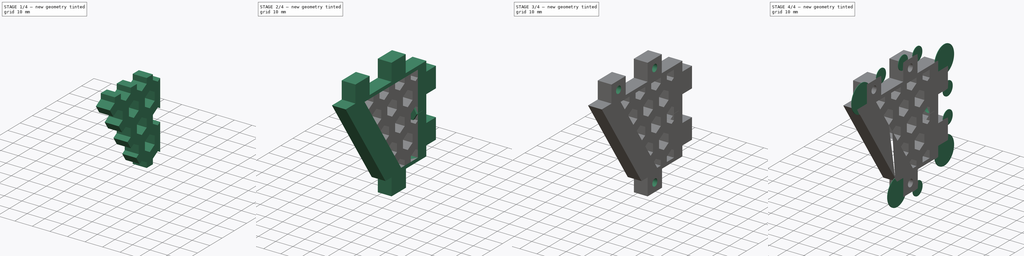
[diagram: build sequence overview — one tinted view per stage of 4, left to right]
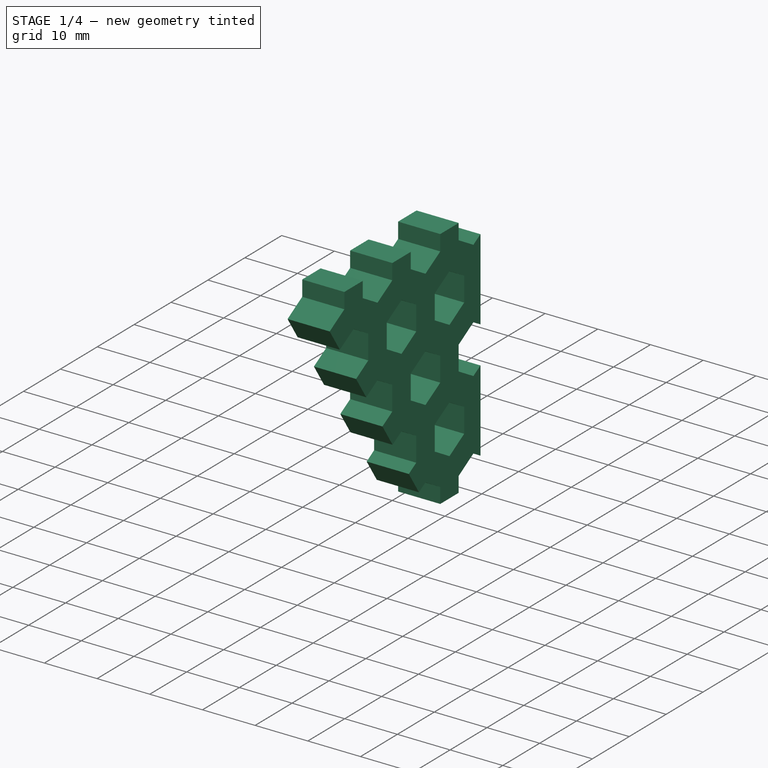
[diagram: stage 1 of 4 — iso view after this stage's code; geometry added in this stage tinted green]
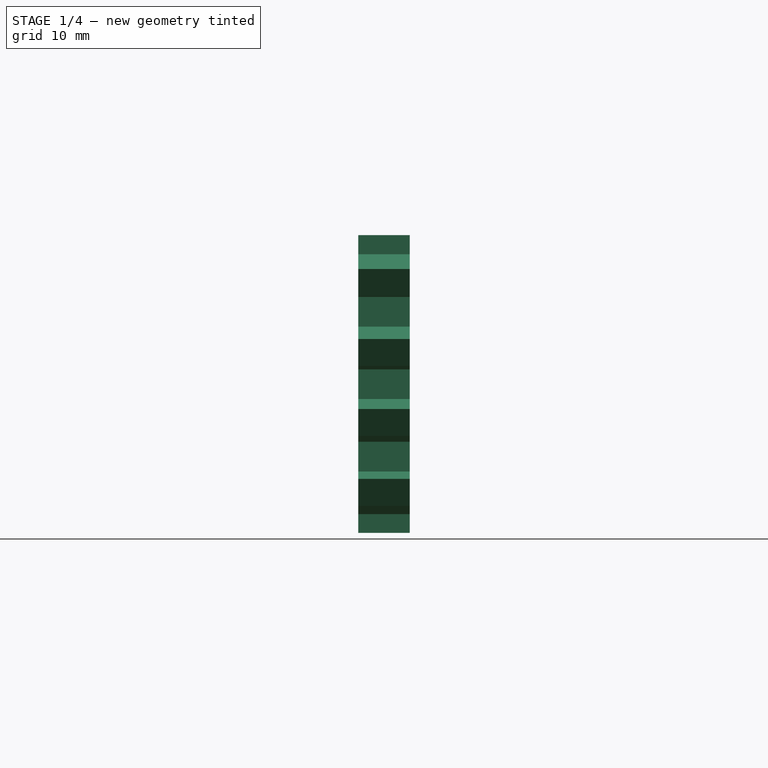
[diagram: stage 1 of 4 — front view after this stage's code; geometry added in this stage tinted green]
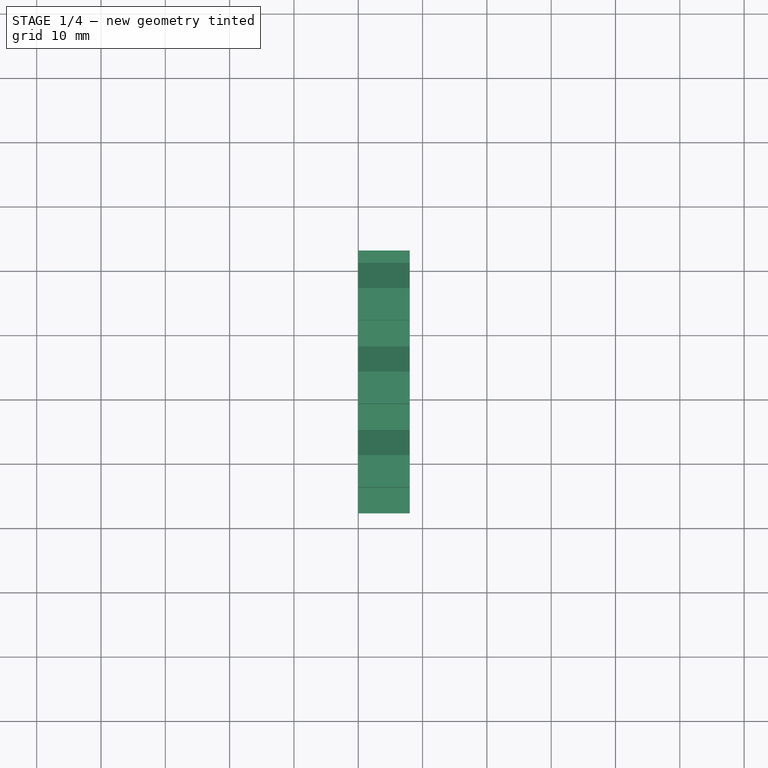
[diagram: stage 1 of 4 — top view after this stage's code; geometry added in this stage tinted green]
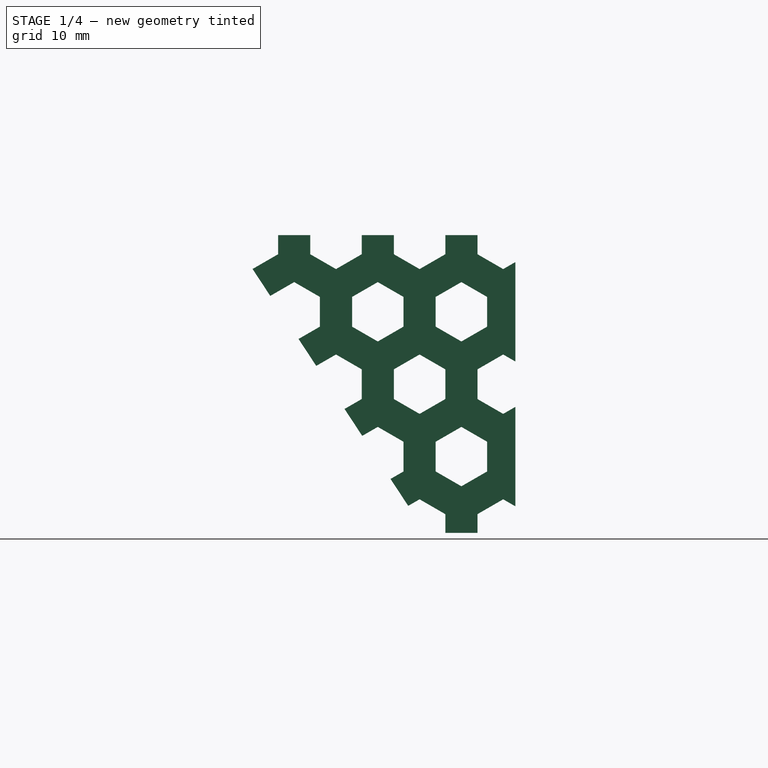
[diagram: stage 1 of 4 — right view after this stage's code; geometry added in this stage tinted green]
FCSTD DOCUMENT  (FreeCAD 0.15R4671 (Git))
Label: Halter Seitenwand Links
License: All rights reserved
LicenseURL: http://de.wikipedia.org/wiki/Alle_Rechte_vorbehalten
objects: Sketcher::SketchObject×7, PartDesign::Pad×4, PartDesign::Pocket×3, Part::Cut×1, Part::Feature×1, Part::Extrusion×1, Part::MultiCommon×1, Part::MultiFuse×1
note: 26 computed .brp shape members not serialized (recipe doc carries the construction recipe); baked Part::Feature solids carry a one-line shape summary decoded from their .brp

FEATURE [Sketcher::SketchObject] Sketch005
  Placement = pos=(0,0,0) rot=(0.57735,0.57735,0.57735;2.0944rad)
  sketch-geometry (4):
    g0: LineSegment StartX=22.5 StartY=23.15 StartZ=0 EndX=22.5 EndY=-23.15 EndZ=0
    g1: LineSegment StartX=22.5 StartY=-23.15 StartZ=0 EndX=8.5944 EndY=-23.15 EndZ=0
    g2: LineSegment StartX=8.5944 StartY=-23.15 StartZ=0 EndX=-21.8273 EndY=23.15 EndZ=0
    g3: LineSegment StartX=-21.8273 StartY=23.15 StartZ=0 EndX=22.5 EndY=23.15 EndZ=0
  constraints (12):
    c: Vertical(g0)
    c: Coincident(g0,g1)
    c: Coincident(g1,g2)
    c: Coincident(g2,g3)
    c: Coincident(g3,g0)
    c: Horizontal(g3)
    c: Horizontal(g1)
    c: Symmetric(g0,g0,g-1)
    c: DistanceX(g3) = 44.3273
    c: DistanceX(g0) = 22.5
    c: DistanceY(g0) = 23.15
    c: DistanceX(g1) = -13.9056
FEATURE [PartDesign::Pad] Pad002
  Length = 8
  Length2 = 100
  Placement = pos=(0,0,0) rot=(0.57735,0.57735,0.57735;2.0944rad)
  Sketch = -> Sketch005
  Type = 0
FEATURE [Part::Feature] Honeycomb
  Placement = pos=(0,0,0) rot=(0,1,0;1.5708rad)
  shape: bbox 2e-07 x 109 x 99.59 mm, 1 faces, 0 solids (baked)
FEATURE [Part::Extrusion] Extrude002
  Base = -> Honeycomb
  Dir = (8,0,0)
  Placement = pos=(0,1.1,5.6) rot=(0,0,1;0rad)
  Solid = true
FEATURE [Part::MultiCommon] Common
  Shapes = -> [Pad002,Extrude002]
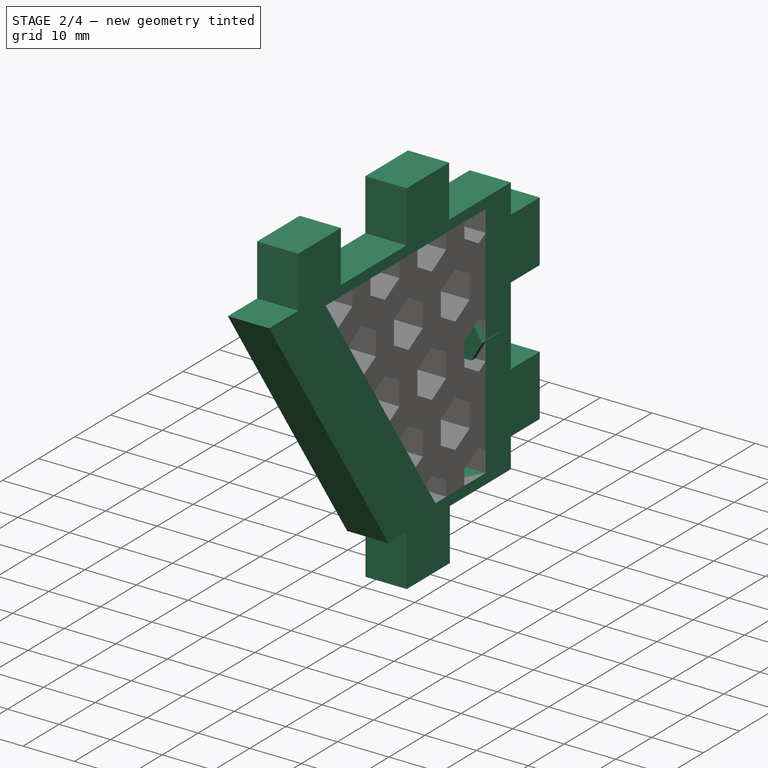
[diagram: stage 2 of 4 — iso view after this stage's code; geometry added in this stage tinted green]
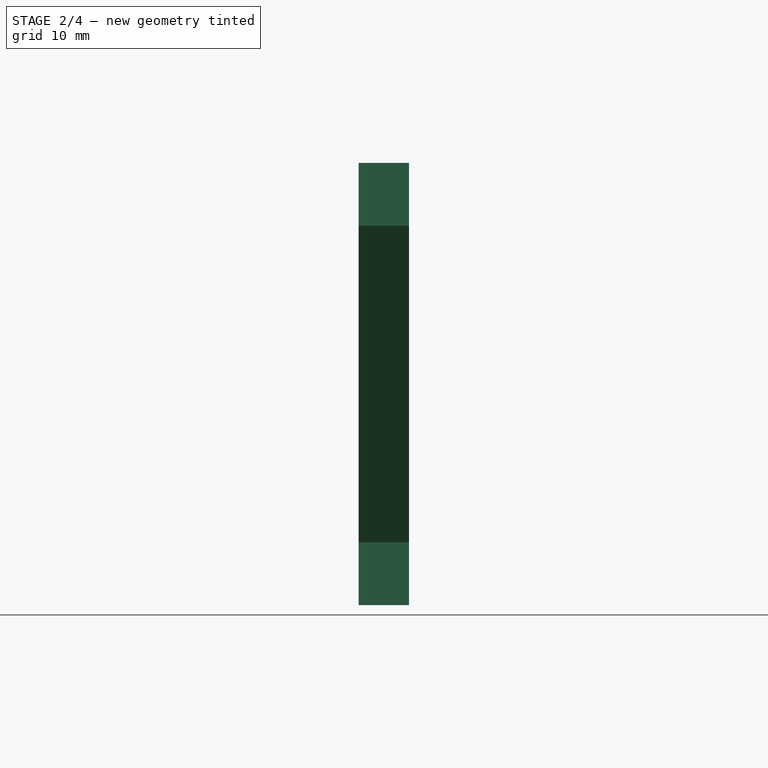
[diagram: stage 2 of 4 — front view after this stage's code; geometry added in this stage tinted green]
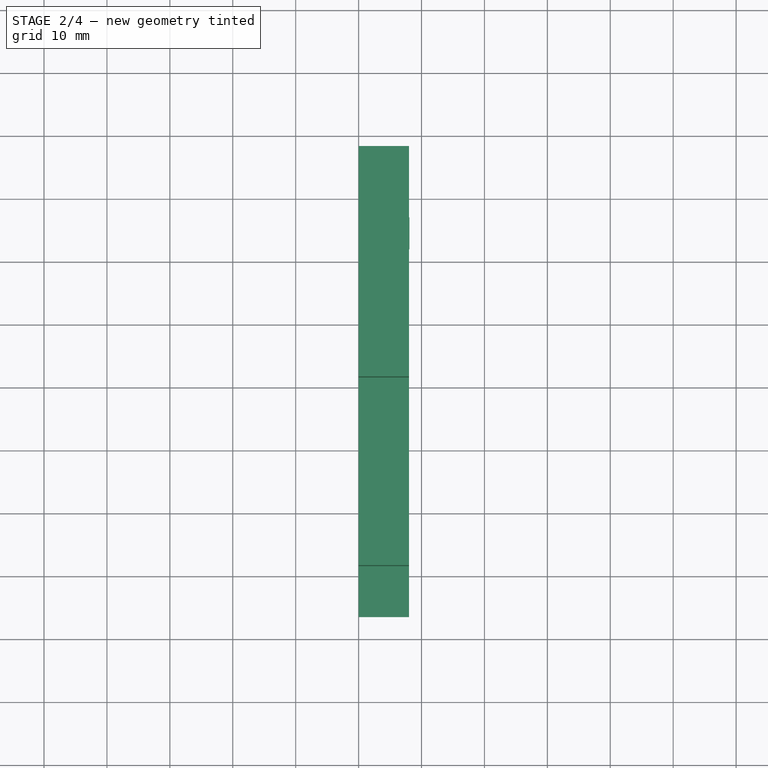
[diagram: stage 2 of 4 — top view after this stage's code; geometry added in this stage tinted green]
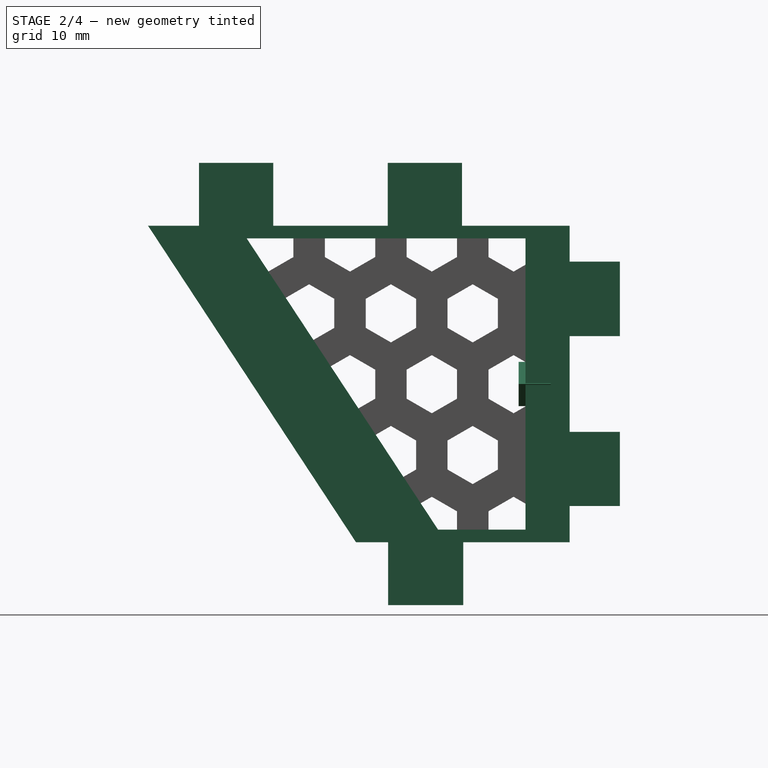
[diagram: stage 2 of 4 — right view after this stage's code; geometry added in this stage tinted green]
FEATURE [Sketcher::SketchObject] Sketch
  Placement = pos=(0,0,0) rot=(0.57735,0.57735,0.57735;2.0944rad)
  sketch-geometry (11):
    g0: LineSegment StartX=-37.5 StartY=35.15 StartZ=0 EndX=37.5 EndY=35.15 EndZ=0
    g1: LineSegment StartX=37.5 StartY=35.15 StartZ=0 EndX=37.5 EndY=-35.15 EndZ=0
    g2: LineSegment StartX=37.5 StartY=-35.15 StartZ=0 EndX=-4.45 EndY=-35.15 EndZ=0
    g3: LineSegment StartX=-21.8273 StartY=23.15 StartZ=0 EndX=22.5 EndY=23.15 EndZ=0
    g4: LineSegment StartX=22.5 StartY=23.15 StartZ=0 EndX=22.5 EndY=-23.15 EndZ=0
    g5: LineSegment StartX=22.5 StartY=-23.15 StartZ=0 EndX=8.59445 EndY=-23.15 EndZ=0
    g6: LineSegment [constr] StartX=-21.8273 StartY=23.15 StartZ=0 EndX=-31.8562 EndY=16.5605 EndZ=0
    g7: LineSegment StartX=-4.45 StartY=-35.15 StartZ=0 EndX=-4.45 EndY=-25.15 EndZ=0
    g8: LineSegment StartX=-4.45 StartY=-25.15 StartZ=0 EndX=-37.5 EndY=25.15 EndZ=0
    g9: LineSegment StartX=-37.5 StartY=25.15 StartZ=0 EndX=-37.5 EndY=35.15 EndZ=0
    g10: LineSegment StartX=-21.8273 StartY=23.15 StartZ=0 EndX=8.59445 EndY=-23.15 EndZ=0
  constraints (33):
    c: Horizontal(g0)
    c: Coincident(g0,g1)
    c: Vertical(g1)
    c: Coincident(g1,g2)
    c: Horizontal(g2)
    c: Symmetric(g0,g0,g-2)
    c: Symmetric(g0,g1,g-1)
    c: DistanceY(g1) = -70.3
    c: DistanceX(g2) = -41.95
    c: DistanceX(g0) = 75
    c: Horizontal(g3)
    c: Coincident(g3,g4)
    c: Vertical(g4)
    c: Coincident(g4,g5)
    c: Horizontal(g5)
    c: Symmetric(g4,g3,g-1)
    c: DistanceY(g4,g1) = -12
    c: DistanceX(g4,g1) = 15
    c: Coincident(g6,g3)
    c: Distance(g6) = 12
    c: Coincident(g2,g7)
    c: Vertical(g7)
    c: Coincident(g7,g8)
    c: Coincident(g8,g9)
    c: Coincident(g9,g0)
    c: Vertical(g9)
    c: Equal(g7,g9)
    c: DistanceY(g7) = 10
    c: PointOnObject(g6,g8)
    c: Perpendicular(g6,g8)
    c: Coincident(g10,g3)
    c: Coincident(g10,g5)
    c: Parallel(g10,g8)
FEATURE [PartDesign::Pad] Pad
  Length = 8
  Length2 = 100
  Placement = pos=(0,0,0) rot=(0.57735,0.57735,0.57735;2.0944rad)
  Sketch = -> Sketch
  Type = 0
FEATURE [Sketcher::SketchObject] Sketch001
  ExternalGeometry = -> [Pad]
  Placement = pos=(8,0,0) rot=(0.57735,0.57735,0.57735;2.0944rad)
  Support = -> Pad [Face12]
  sketch-geometry (30):
    g0: LineSegment StartX=-37.5 StartY=35.15 StartZ=0 EndX=-29.4 EndY=35.15 EndZ=0
    g1: LineSegment StartX=-29.4 StartY=35.15 StartZ=0 EndX=-29.4 EndY=25.15 EndZ=0
    g2: LineSegment StartX=-29.4 StartY=25.15 StartZ=0 EndX=-37.5 EndY=25.15 EndZ=0
    g3: LineSegment StartX=-37.5 StartY=25.15 StartZ=0 EndX=-37.5 EndY=35.15 EndZ=0
    g4: LineSegment StartX=-17.6 StartY=35.15 StartZ=0 EndX=0.6 EndY=35.15 EndZ=0
    g5: LineSegment StartX=0.6 StartY=35.15 StartZ=0 EndX=0.6 EndY=25.15 EndZ=0
    g6: LineSegment StartX=0.6 StartY=25.15 StartZ=0 EndX=-17.6 EndY=25.15 EndZ=0
    g7: LineSegment StartX=-17.6 StartY=25.15 StartZ=0 EndX=-17.6 EndY=35.15 EndZ=0
    g8: LineSegment StartX=37.5 StartY=35.15 StartZ=0 EndX=12.4 EndY=35.15 EndZ=0
    g9: LineSegment StartX=12.4 StartY=35.15 StartZ=0 EndX=12.4 EndY=25.15 EndZ=0
    g10: LineSegment StartX=12.4 StartY=25.15 StartZ=0 EndX=29.5 EndY=25.15 EndZ=0
    g11: LineSegment StartX=29.5 StartY=25.15 StartZ=0 EndX=29.5 EndY=19.45 EndZ=0
    g12: LineSegment StartX=29.5 StartY=19.45 StartZ=0 EndX=37.5 EndY=19.45 EndZ=0
    g13: LineSegment StartX=37.5 StartY=19.45 StartZ=0 EndX=37.5 EndY=35.15 EndZ=0
    g14: LineSegment StartX=-4.45 StartY=-35.15 StartZ=0 EndX=0.65 EndY=-35.15 EndZ=0
    g15: LineSegment StartX=0.65 StartY=-35.15 StartZ=0 EndX=0.65 EndY=-25.15 EndZ=0
    g16: LineSegment StartX=0.65 StartY=-25.15 StartZ=0 EndX=-4.45 EndY=-25.15 EndZ=0
    g17: LineSegment StartX=-4.45 StartY=-25.15 StartZ=0 EndX=-4.45 EndY=-35.15 EndZ=0
    g18: LineSegment StartX=12.6 StartY=-35.15 StartZ=0 EndX=37.5 EndY=-35.15 EndZ=0
    g19: LineSegment StartX=37.5 StartY=-35.15 StartZ=0 EndX=37.5 EndY=-25.15 EndZ=0
    g20: LineSegment [constr] StartX=37.5 StartY=-25.15 StartZ=0 EndX=12.6 EndY=-25.15 EndZ=0
    g21: LineSegment StartX=12.6 StartY=-25.15 StartZ=0 EndX=12.6 EndY=-35.15 EndZ=0
    g22: LineSegment StartX=37.5 StartY=-25.15 StartZ=0 EndX=37.5 EndY=-19.4 EndZ=0
    g23: LineSegment StartX=37.5 StartY=-19.4 StartZ=0 EndX=29.5 EndY=-19.4 EndZ=0
    g24: LineSegment StartX=29.5 StartY=-19.4 StartZ=0 EndX=29.5 EndY=-25.15 EndZ=0
    g25: LineSegment StartX=29.5 StartY=-25.15 StartZ=0 EndX=12.6 EndY=-25.15 EndZ=0
    g26: LineSegment StartX=37.5 StartY=7.6 StartZ=0 EndX=29.5 EndY=7.6 EndZ=0
    g27: LineSegment StartX=29.5 StartY=7.6 StartZ=0 EndX=29.5 EndY=-7.6 EndZ=0
    g28: LineSegment StartX=29.5 StartY=-7.6 StartZ=0 EndX=37.5 EndY=-7.6 EndZ=0
    g29: LineSegment StartX=37.5 StartY=-7.6 StartZ=0 EndX=37.5 EndY=7.6 EndZ=0
  constraints (86):
    c: Coincident(g0,g1)
    c: Coincident(g1,g2)
    c: Coincident(g2,g3)
    c: Coincident(g3,g0)
    c: Horizontal(g0)
    c: Horizontal(g2)
    c: Vertical(g1)
    c: Vertical(g3)
    c: Coincident(g0,g-3)
    c: DistanceX(g2) = -8.1
    c: DistanceY(g1) = -10
    c: Coincident(g4,g5)
    c: Coincident(g5,g6)
    c: Coincident(g6,g7)
    c: Coincident(g7,g4)
    c: Horizontal(g4)
    c: Horizontal(g6)
    c: Vertical(g5)
    c: Vertical(g7)
    c: PointOnObject(g4,g-4)
    c: Equal(g7,g1)
    c: DistanceX(g0,g4) = 19.9
    c: DistanceX(g0,g4) = 38.1
    c: Coincident(g-4,g8)
    c: Coincident(g8,g9)
    c: Vertical(g9)
    c: Coincident(g9,g10)
    c: Horizontal(g10)
    c: Coincident(g10,g11)
    c: Vertical(g11)
    c: Coincident(g11,g12)
    c: Horizontal(g12)
    c: Coincident(g12,g13)
    c: Coincident(g13,g8)
    c: Vertical(g13)
    c: Horizontal(g8)
    c: DistanceX(g0,g8) = 49.9
    c: Equal(g5,g9)
    c: DistanceX(g12) = 8
    c: DistanceY(g13) = 15.7
    c: Coincident(g14,g15)
    c: Coincident(g15,g16)
    c: Coincident(g16,g17)
    c: Coincident(g17,g14)
    c: Horizontal(g14)
    c: Horizontal(g16)
    c: Vertical(g15)
    c: Vertical(g17)
    c: Coincident(g14,g-5)
    c: DistanceX(g14) = 5.1
    c: Equal(g15,g1)
    c: Coincident(g18,g19)
    c: Coincident(g19,g20)
    c: Coincident(g20,g21)
    c: Coincident(g21,g18)
    c: Horizontal(g18)
    c: Horizontal(g20)
    c: Vertical(g19)
    c: Vertical(g21)
    c: PointOnObject(g18,g14)
    c: Equal(g15,g21)
    c: DistanceX(g14,g18) = 17.05
    c: Coincident(g18,g-6)
    c: Coincident(g19,g22)
    c: Coincident(g22,g23)
    c: Coincident(g23,g24)
    c: Vertical(g24)
    c: Coincident(g24,g25)
    c: Horizontal(g25)
    c: Coincident(g25,g20)
    c: Vertical(g22)
    c: Horizontal(g23)
    c: DistanceY(g22,g18) = -15.75
    c: Equal(g23,g12)
    c: Coincident(g26,g27)
    c: Coincident(g27,g28)
    c: Coincident(g28,g29)
    c: Coincident(g29,g26)
    c: Horizontal(g26)
    c: Horizontal(g28)
    c: Vertical(g27)
    c: Vertical(g29)
    c: PointOnObject(g26,g-6)
    c: Equal(g28,g23)
    c: DistanceY(g28,g18) = -27.55
    c: DistanceY(g26,g18) = -42.75
FEATURE [PartDesign::Pocket] Pocket
  Length = 5
  Placement = pos=(0,0,0) rot=(0.57735,0.57735,0.57735;2.0944rad)
  Sketch = -> Sketch001
  Type = 1
FEATURE [Sketcher::SketchObject] Sketch003
  Placement = pos=(0,26.5,0) rot=(1,0,0;1.5708rad)
  sketch-geometry (10):
    g0: LineSegment StartX=1.96484 StartY=-3.525 StartZ=0 EndX=6.03516 EndY=-3.525 EndZ=0
    g1: LineSegment StartX=6.03516 StartY=-3.525 StartZ=0 EndX=8.07032 EndY=0 EndZ=0
    g2: LineSegment StartX=8.07032 StartY=0 StartZ=0 EndX=6.03516 EndY=3.525 EndZ=0
    g3: LineSegment [constr] StartX=6.03516 StartY=3.525 StartZ=0 EndX=1.96484 EndY=3.525 EndZ=0
    g4: LineSegment [constr] StartX=1.96484 StartY=3.525 StartZ=0 EndX=-0.0703194 EndY=0 EndZ=0
    g5: LineSegment [constr] StartX=-0.0703194 StartY=0 StartZ=0 EndX=1.96484 EndY=-3.525 EndZ=0
    g6: Circle [constr] CenterX=4 CenterY=0 CenterZ=0 NormalX=0 NormalY=0 NormalZ=1 Radius=4.07032
    g7: LineSegment StartX=6.03516 StartY=3.525 StartZ=0 EndX=0 EndY=3.525 EndZ=0
    g8: LineSegment StartX=0 StartY=3.525 StartZ=0 EndX=0 EndY=-3.525 EndZ=0
    g9: LineSegment StartX=0 StartY=-3.525 StartZ=0 EndX=1.96484 EndY=-3.525 EndZ=0
  constraints (25):
    c: Coincident(g0,g1)
    c: Coincident(g1,g2)
    c: Coincident(g2,g3)
    c: Coincident(g3,g4)
    c: Coincident(g4,g5)
    c: Coincident(g5,g0)
    c: Equal(g0, g1-g5) x5
    c: PointOnObject(g0,g6)
    c: PointOnObject(g1,g6)
    c: PointOnObject(g2,g6)
    c: PointOnObject(g3,g6)
    c: PointOnObject(g4,g6)
    c: PointOnObject(g5,g6)
    c: Coincident(g7,g8)
    c: Coincident(g8,g9)
    c: Horizontal(g7)
    c: Horizontal(g9)
    c: Coincident(g7,g2)
    c: Coincident(g0,g9)
    c: PointOnObject(g8,g-2)
    c: DistanceX(g-1,g6) = 4
    c: PointOnObject(g6,g-1)
    c: Vertical(g8)
    c: Distance(g4,g0) = 7.05
    c: Horizontal(g0)
FEATURE [PartDesign::Pad] Pad001
  Length = 5.1
  Length2 = 100
  Placement = pos=(0,26.5,0) rot=(1,0,0;1.5708rad)
  Sketch = -> Sketch003
  Type = 0
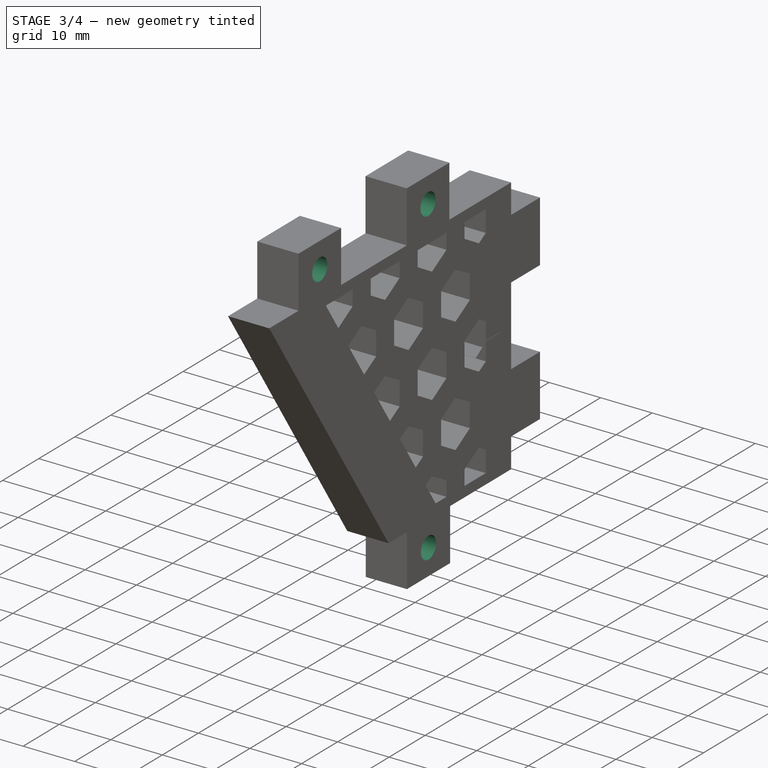
[diagram: stage 3 of 4 — iso view after this stage's code; geometry added in this stage tinted green]
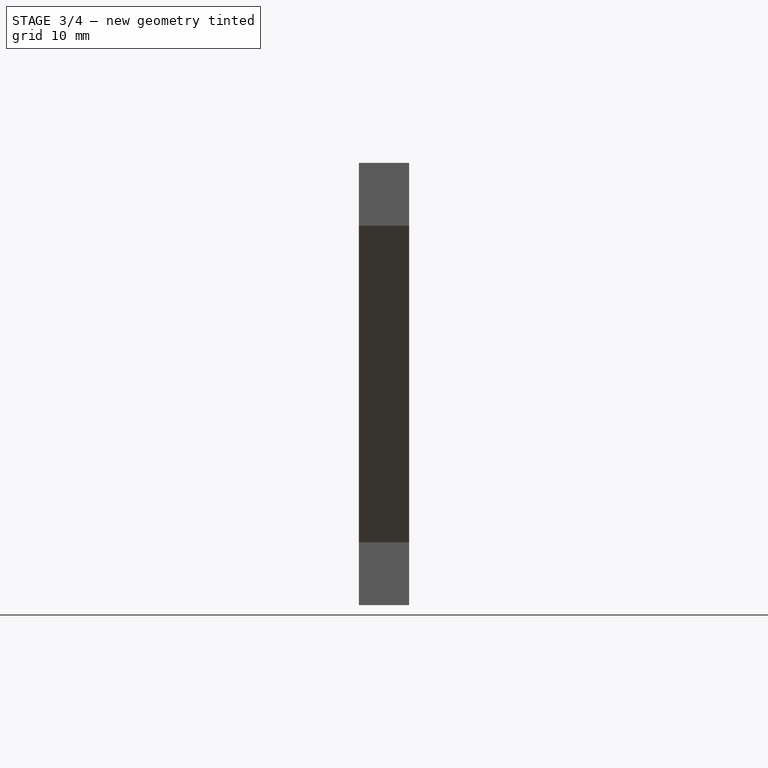
[diagram: stage 3 of 4 — front view after this stage's code; geometry added in this stage tinted green]
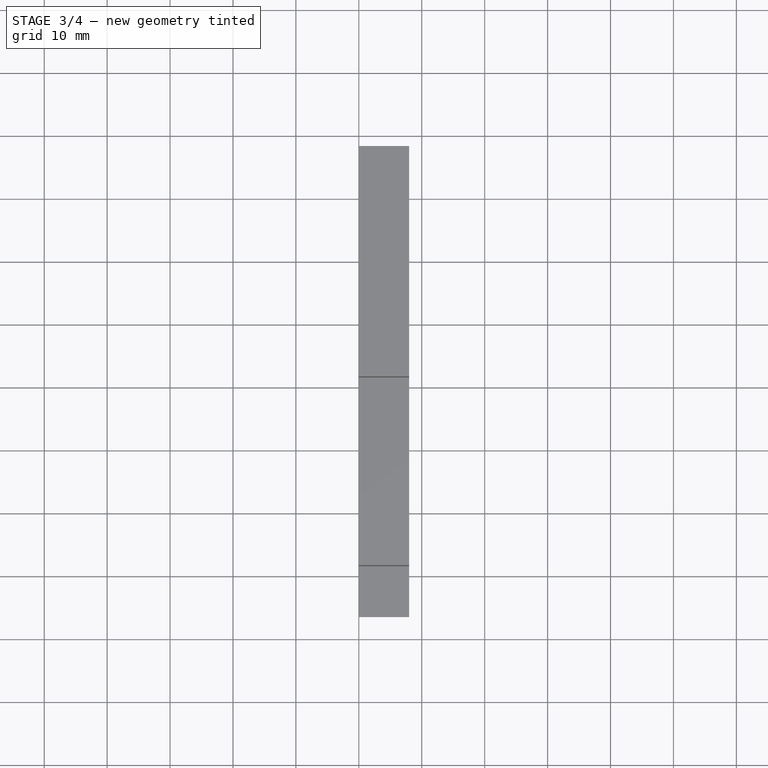
[diagram: stage 3 of 4 — top view after this stage's code; geometry added in this stage tinted green]
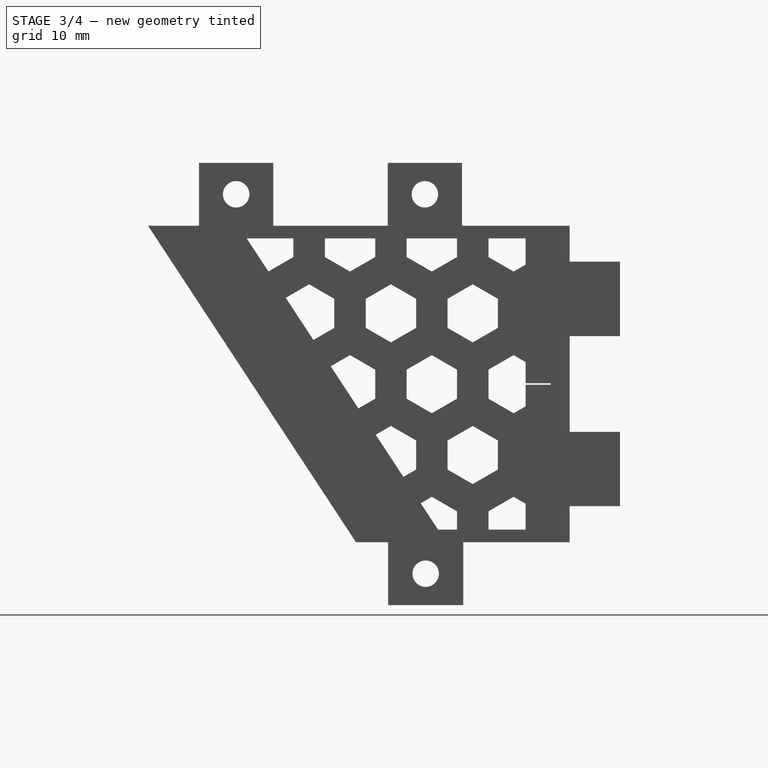
[diagram: stage 3 of 4 — right view after this stage's code; geometry added in this stage tinted green]
FEATURE [Sketcher::SketchObject] Sketch002
  ExternalGeometry = -> [Pocket]
  Placement = pos=(8,0,0) rot=(0.57735,0.57735,0.57735;2.0944rad)
  Support = -> Pocket [Face5]
  sketch-geometry (9):
    g0: LineSegment [constr] StartX=-29.4 StartY=35.15 StartZ=0 EndX=-17.6 EndY=25.15 EndZ=0
    g1: LineSegment [constr] StartX=-29.4 StartY=25.15 StartZ=0 EndX=-17.6 EndY=35.15 EndZ=0
    g2: LineSegment [constr] StartX=0.6 StartY=35.15 StartZ=0 EndX=12.4 EndY=25.15 EndZ=0
    g3: LineSegment [constr] StartX=0.6 StartY=25.15 StartZ=0 EndX=12.4 EndY=35.15 EndZ=0
    g4: Circle CenterX=-23.5 CenterY=30.15 CenterZ=0 NormalX=0 NormalY=0 NormalZ=1 Radius=2.1
    g5: Circle CenterX=6.5 CenterY=30.15 CenterZ=0 NormalX=0 NormalY=0 NormalZ=1 Radius=2.1
    g6: LineSegment [constr] StartX=0.65 StartY=-25.15 StartZ=0 EndX=12.6 EndY=-35.15 EndZ=0
    g7: LineSegment [constr] StartX=0.65 StartY=-35.15 StartZ=0 EndX=12.6 EndY=-25.15 EndZ=0
    g8: Circle CenterX=6.625 CenterY=-30.15 CenterZ=0 NormalX=0 NormalY=0 NormalZ=1 Radius=2.1
  constraints (21):
    c: Coincident(g0,g-3)
    c: Coincident(g0,g-4)
    c: Coincident(g1,g-3)
    c: Coincident(g1,g-4)
    c: Coincident(g2,g-6)
    c: Coincident(g2,g-5)
    c: Coincident(g3,g-6)
    c: Coincident(g3,g-5)
    c: PointOnObject(g4,g1)
    c: PointOnObject(g5,g3)
    c: Equal(g4,g5)
    c: PointOnObject(g4,g0)
    c: PointOnObject(g5,g2)
    c: Radius(g5) = 2.1
    c: Coincident(g6,g-7)
    c: Coincident(g6,g-8)
    c: Coincident(g7,g-7)
    c: Coincident(g7,g-8)
    c: PointOnObject(g8,g6)
    c: PointOnObject(g8,g7)
    c: Equal(g8,g5)
FEATURE [PartDesign::Pocket] Pocket001
  Length = 5
  Placement = pos=(0,0,0) rot=(0.57735,0.57735,0.57735;2.0944rad)
  Sketch = -> Sketch002
  Type = 1
FEATURE [Part::Cut] Cut
  Base = -> Pocket001
  Tool = -> Pad001
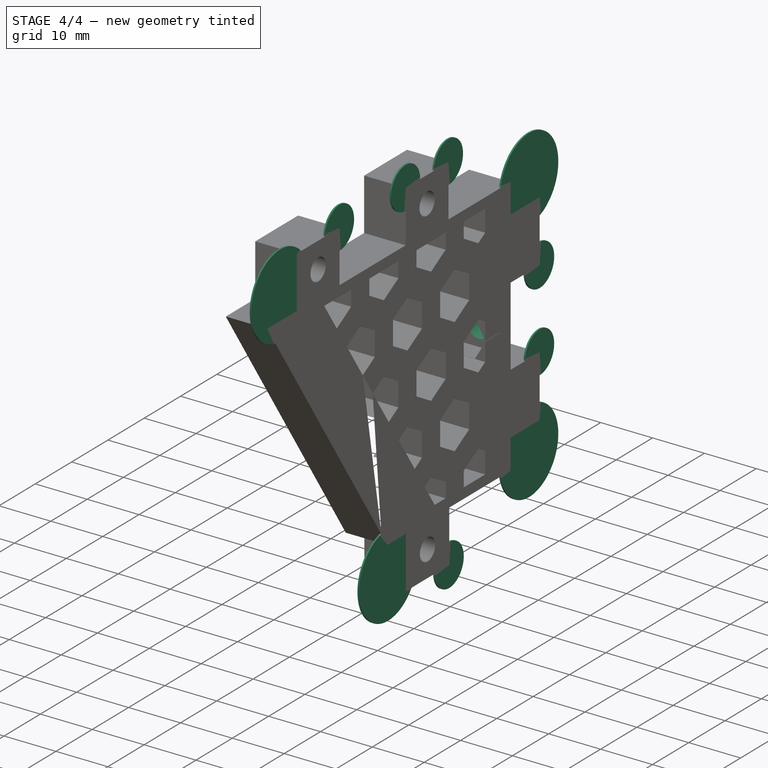
[diagram: stage 4 of 4 — iso view after this stage's code; geometry added in this stage tinted green]
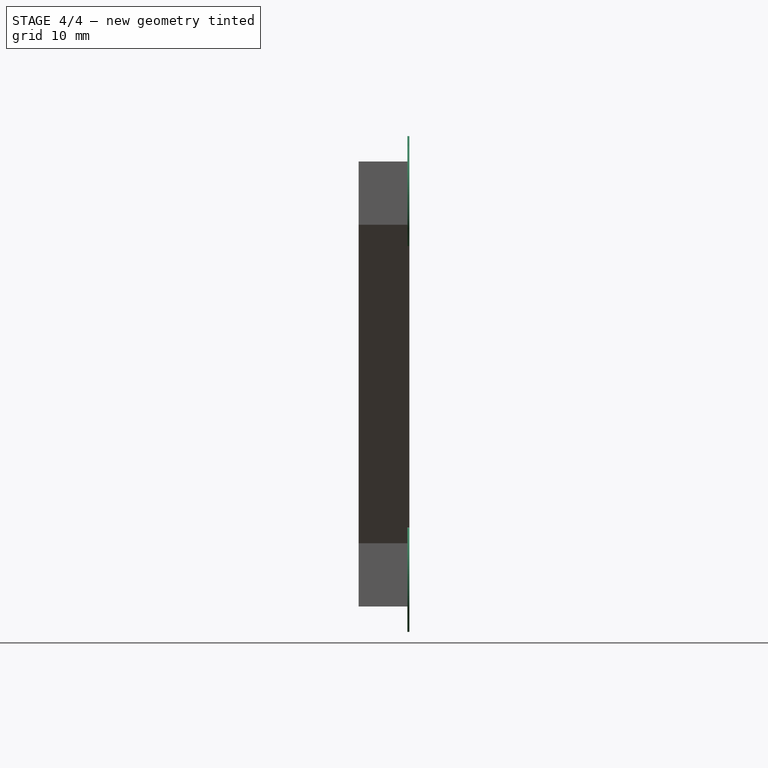
[diagram: stage 4 of 4 — front view after this stage's code; geometry added in this stage tinted green]
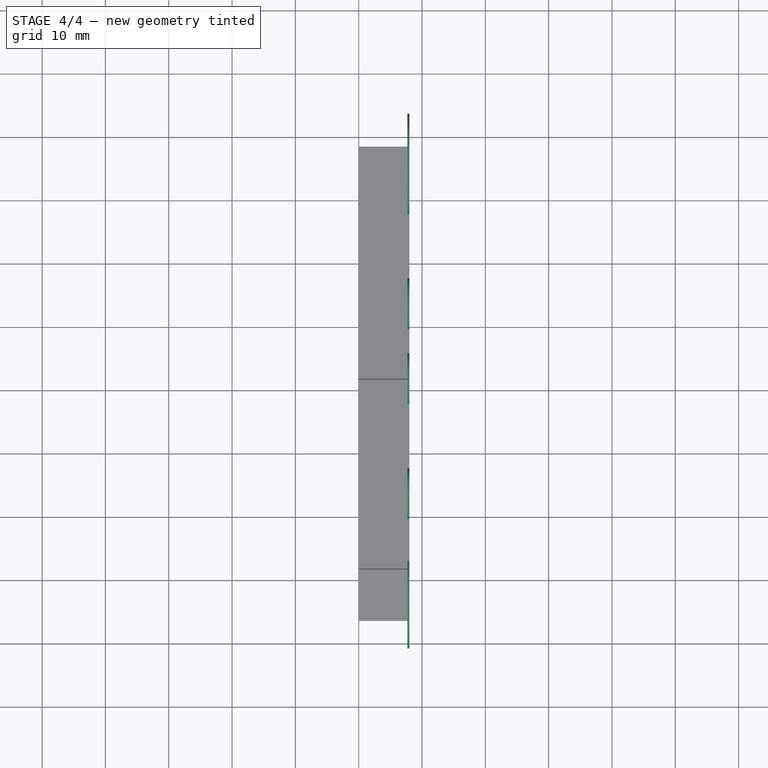
[diagram: stage 4 of 4 — top view after this stage's code; geometry added in this stage tinted green]
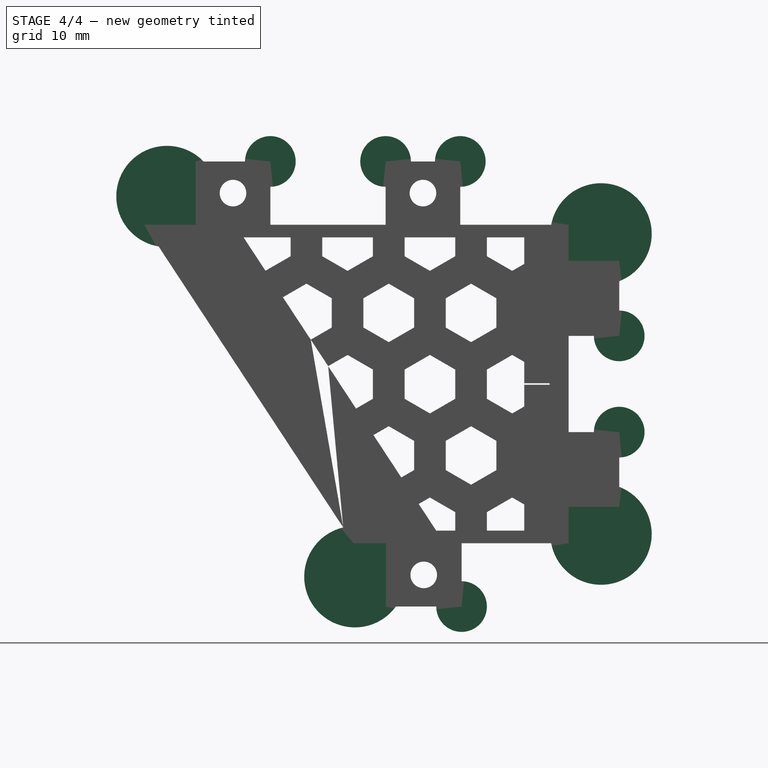
[diagram: stage 4 of 4 — right view after this stage's code; geometry added in this stage tinted green]
FEATURE [Sketcher::SketchObject] Sketch004
  Placement = pos=(0,29.5,0) rot=(0,0.707107,0.707107;3.14159rad)
  Support = -> Cut [Face25]
  sketch-geometry (1):
    g0: Circle CenterX=-4 CenterY=0 CenterZ=0 NormalX=0 NormalY=0 NormalZ=1 Radius=2.1
  constraints (3):
    c: PointOnObject(g0,g-1)
    c: DistanceX(g-1,g0) = -4
    c: Radius(g0) = 2.1
FEATURE [PartDesign::Pocket] Pocket002
  Length = 7
  Sketch = -> Sketch004
  Type = 0
FEATURE [Part::MultiFuse] Fusion  label="Halter Seitenwand Fraesspindel"
  Shapes = -> [Pocket002,Common]
FEATURE [Sketcher::SketchObject] Sketch006
  ExternalGeometry = -> [Fusion]
  Placement = pos=(8,0,0) rot=(0.57735,0.57735,0.57735;2.0944rad)
  Support = -> Fusion [Face5]
  sketch-geometry (10):
    g0: Circle CenterX=34.6286 CenterY=23.7091 CenterZ=0 NormalX=0 NormalY=0 NormalZ=1 Radius=8
    g1: Circle CenterX=34.6286 CenterY=-23.7091 CenterZ=0 NormalX=0 NormalY=0 NormalZ=1 Radius=8
    g2: Circle CenterX=-33.9302 CenterY=29.6141 CenterZ=0 NormalX=0 NormalY=0 NormalZ=1 Radius=8
    g3: Circle CenterX=-4.25033 CenterY=-30.4398 CenterZ=0 NormalX=0 NormalY=0 NormalZ=1 Radius=8
    g4: Circle CenterX=-17.6 CenterY=35.15 CenterZ=0 NormalX=0 NormalY=0 NormalZ=1 Radius=4
    g5: Circle CenterX=0.6 CenterY=35.15 CenterZ=0 NormalX=0 NormalY=0 NormalZ=1 Radius=4
    g6: Circle CenterX=12.4 CenterY=35.15 CenterZ=0 NormalX=0 NormalY=0 NormalZ=1 Radius=4
    g7: Circle CenterX=12.6 CenterY=-35.15 CenterZ=0 NormalX=0 NormalY=0 NormalZ=1 Radius=4
    g8: Circle CenterX=37.5 CenterY=7.6 CenterZ=0 NormalX=0 NormalY=0 NormalZ=1 Radius=4
    g9: Circle CenterX=37.5 CenterY=-7.6 CenterZ=0 NormalX=0 NormalY=0 NormalZ=1 Radius=4
  constraints (23):
    c: Equal(g0,g1)
    c: Radius(g1) = 8
    c: Symmetric(g0,g1,g-1)
    c: DistanceX(g0) = 34.6286
    c: DistanceY(g0) = 23.7091
    c: Equal(g2,g3)
    c: Equal(g3,g1)
    c: DistanceX(g2) = -33.9302
    c: DistanceY(g2) = 29.6141
    c: DistanceX(g3) = -4.25033
    c: DistanceY(g3) = -30.4398
    c: Coincident(g7,g-5)
    c: Coincident(g6,g-3)
    c: Coincident(g5,g-3)
    c: Coincident(g4,g-4)
    c: Radius(g4) = 4
    c: Equal(g4,g5)
    c: Equal(g4,g6)
    c: Equal(g4,g7)
    c: Coincident(g8,g-6)
    c: Coincident(g9,g-7)
    c: Equal(g9,g8)
    c: Equal(g8,g6)
FEATURE [PartDesign::Pad] Pad003  label="Halter Seitenwand Fraesspindel - Druckbar"
  Length = 0.3
  Length2 = 100
  Reversed = true
  Sketch = -> Sketch006
  Type = 0
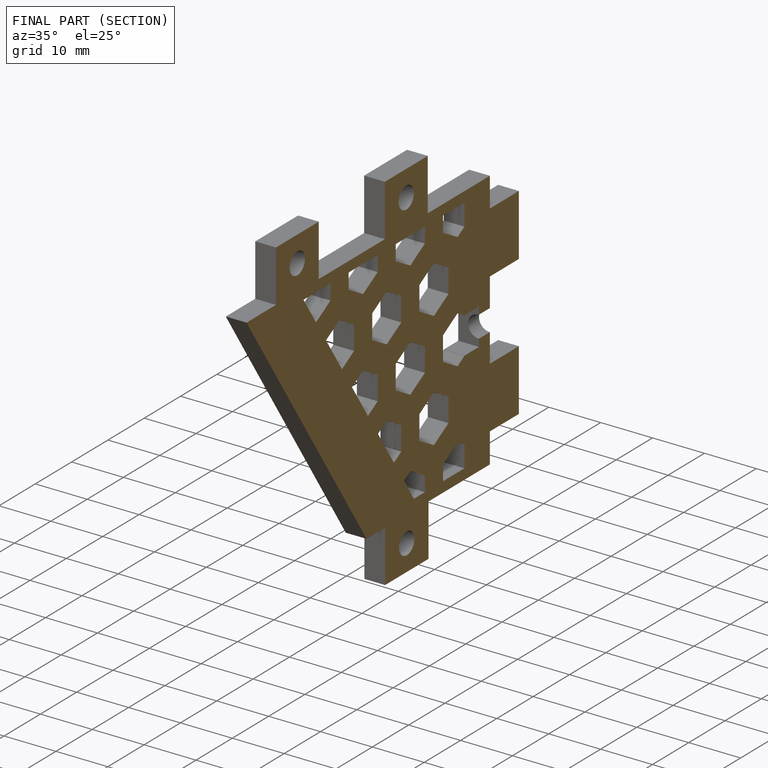
[diagram: finished part — half-section view (interior)]
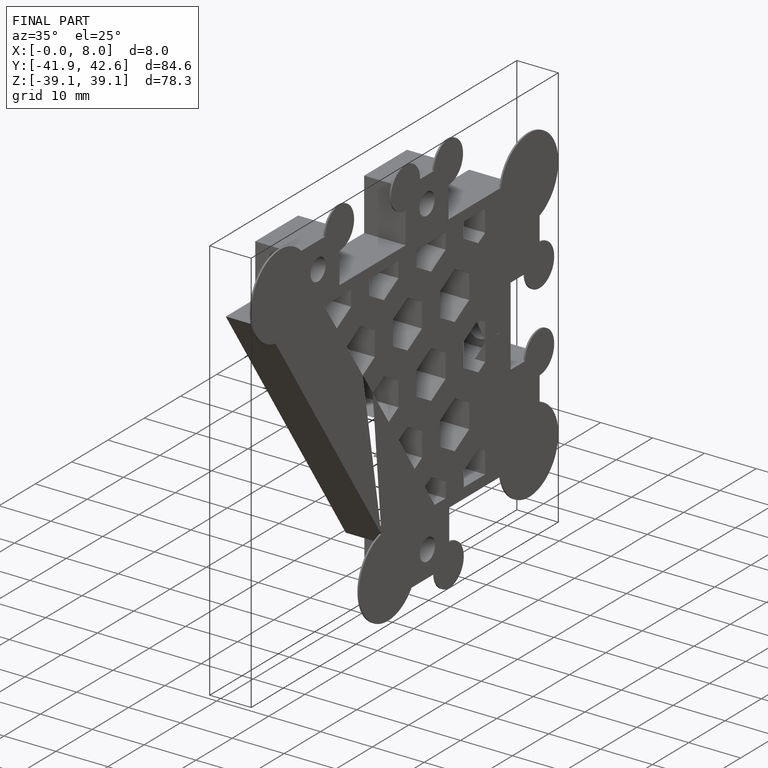
[diagram: finished part — iso view with bounding-box wireframe]
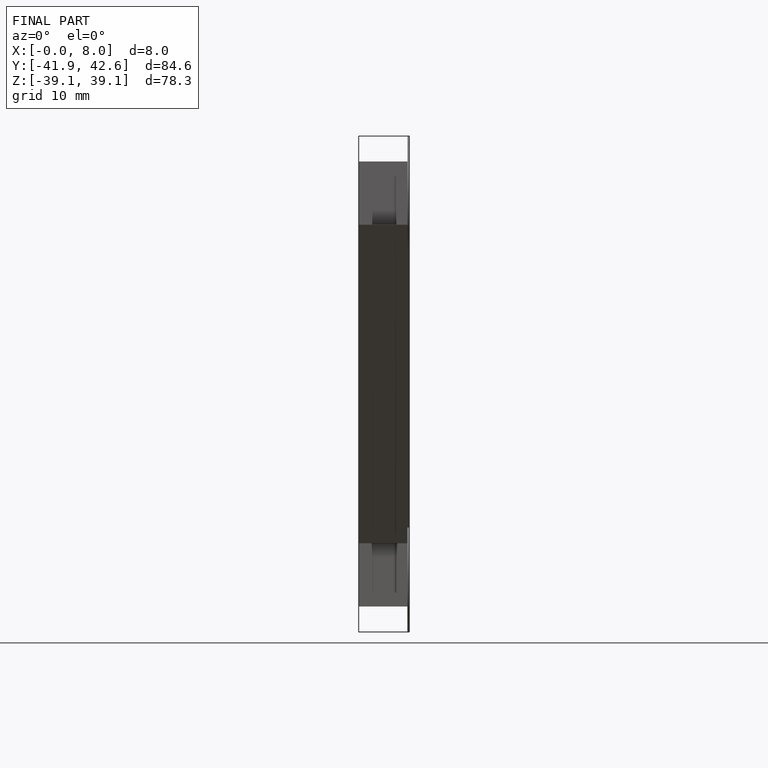
[diagram: finished part — front view with bounding-box wireframe]
